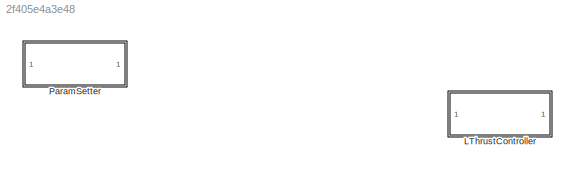
MODEL slx_2f405e4a3e48
KIND model
CONFIG AbsTol = auto
CONFIG EnableMultiTasking = off
CONFIG FixedStep = auto
CONFIG MaxStep = auto
CONFIG MinStep = auto
CONFIG RelTol = 1e-3
CONFIG SampleTimeConstraint = Unconstrained
CONFIG Solver = VariableStepAuto
CONFIG SolverName = VariableStepAuto
CONFIG StartTime = 0.0
CONFIG StopTime = 10.0
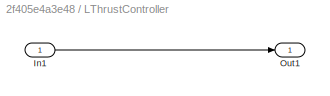
BLOCK [SubSystem] LThrustController
  Ports = [1, 1]
  RequestExecContextInheritance = off
  Variant = off
BLOCK [Inport] LThrustController/In1
  IconDisplay = Port number
BLOCK [Outport] LThrustController/Out1
  IconDisplay = Port number
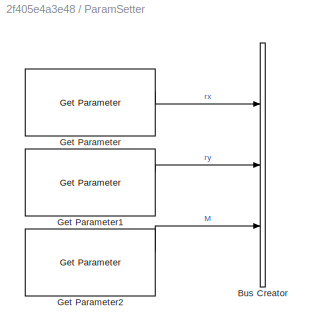
BLOCK [SubSystem] ParamSetter
  Ports = []
  RequestExecContextInheritance = off
  Variant = off
BLOCK [BusCreator] ParamSetter/Bus Creator
  DisplayOption = bar
  InheritFromInputs = on
  Inputs = 3
  Ports = [3, 1]
BLOCK [Reference] ParamSetter/Get Parameter  REF=robotlib/Get Parameter
  Ports = [0, 2]
  SourceBlock = robotlib/Get Parameter
  SourceLibraryInfo = This block requires Robotics System Toolbox
  SourceProductBaseCode = RO
  SourceProductName = Robotics System Toolbox
  SourceType = ROS Get Parameter
BLOCK [Reference] ParamSetter/Get Parameter1  REF=robotlib/Get Parameter
  Ports = [0, 2]
  SourceBlock = robotlib/Get Parameter
  SourceLibraryInfo = This block requires Robotics System Toolbox
  SourceProductBaseCode = RO
  SourceProductName = Robotics System Toolbox
  SourceType = ROS Get Parameter
BLOCK [Reference] ParamSetter/Get Parameter2  REF=robotlib/Get Parameter
  Ports = [0, 2]
  SourceBlock = robotlib/Get Parameter
  SourceLibraryInfo = This block requires Robotics System Toolbox
  SourceProductBaseCode = RO
  SourceProductName = Robotics System Toolbox
  SourceType = ROS Get Parameter
LINE LThrustController/In1:1 -> LThrustController/Out1:1
LINE ParamSetter/Get Parameter1:1 -> ParamSetter/Bus Creator:2
LINE ParamSetter/Get Parameter2:1 -> ParamSetter/Bus Creator:3
LINE ParamSetter/Get Parameter:1 -> ParamSetter/Bus Creator:1
